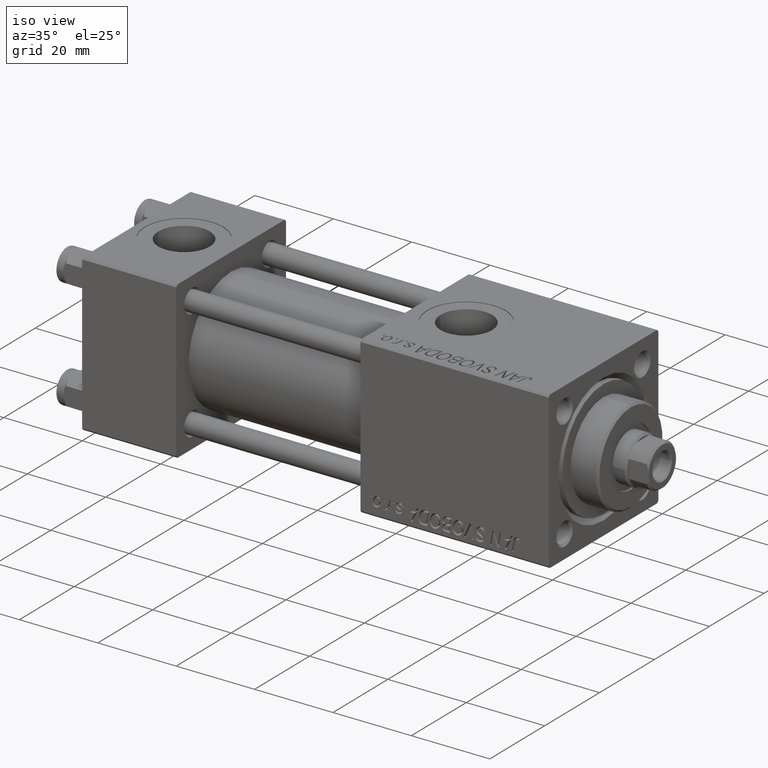
[diagram: clean part render]
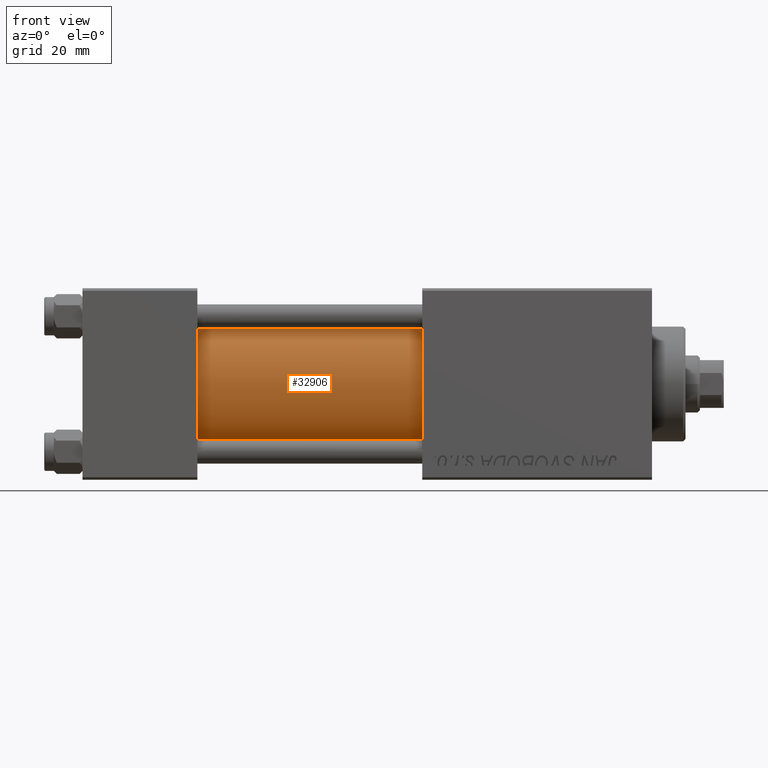
[diagram: tour spotlight — one face highlighted and labeled with its STEP entity id]
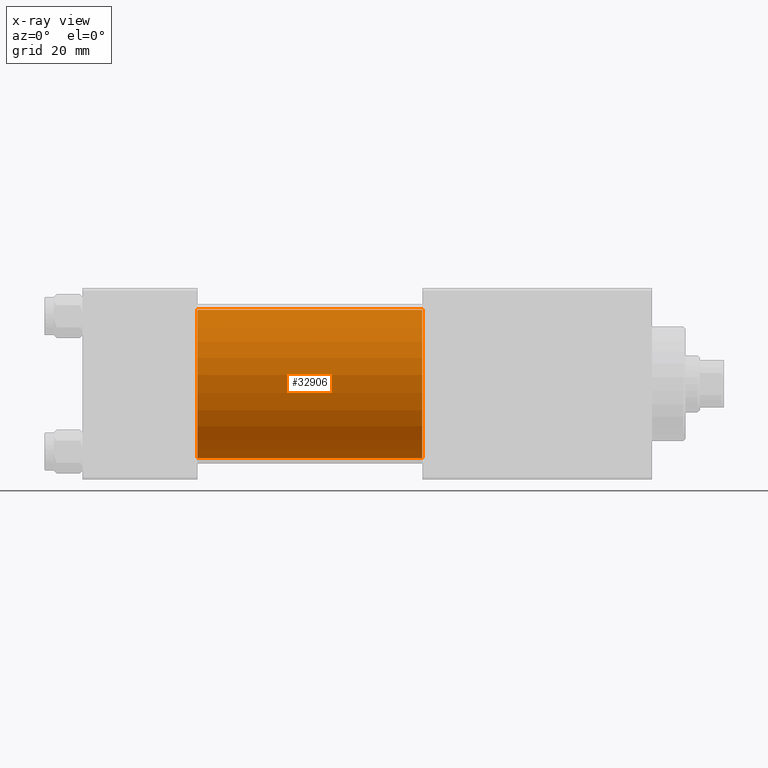
[diagram: x-ray of the same camera — body ghosted, this tour face saturated]
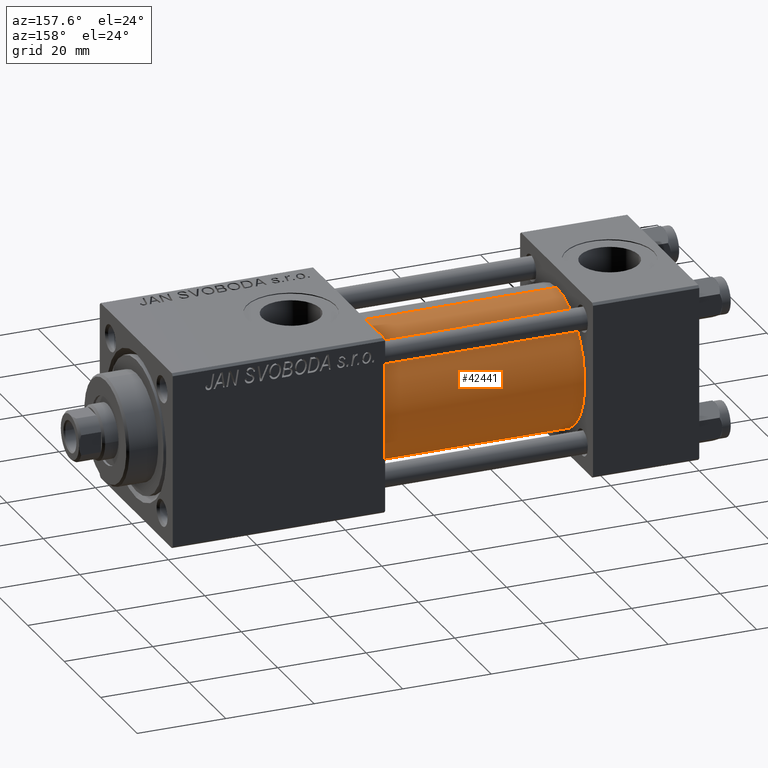
[diagram: tour spotlight — one face highlighted and labeled with its STEP entity id]
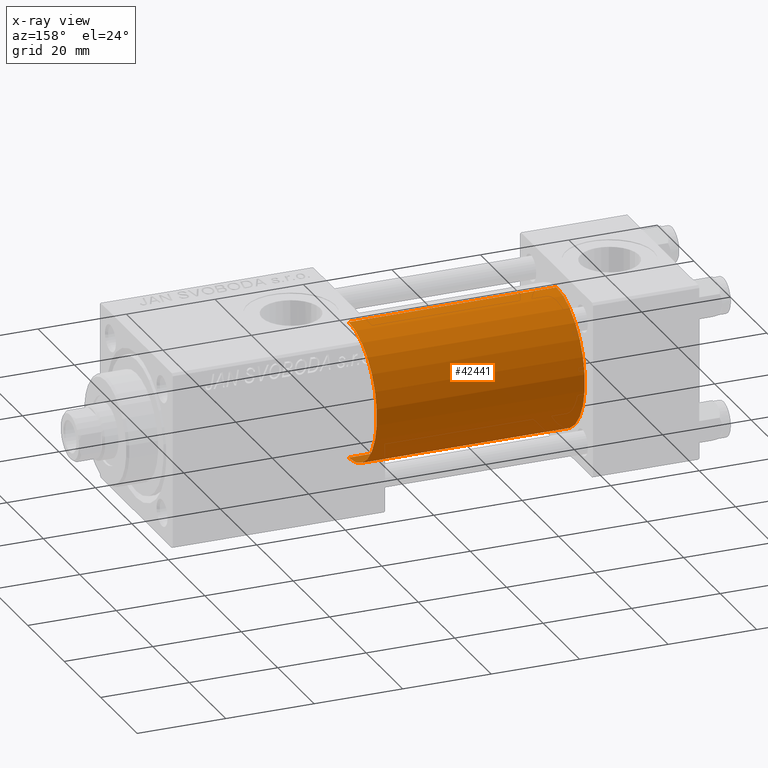
[diagram: x-ray of the same camera — body ghosted, this tour face saturated]
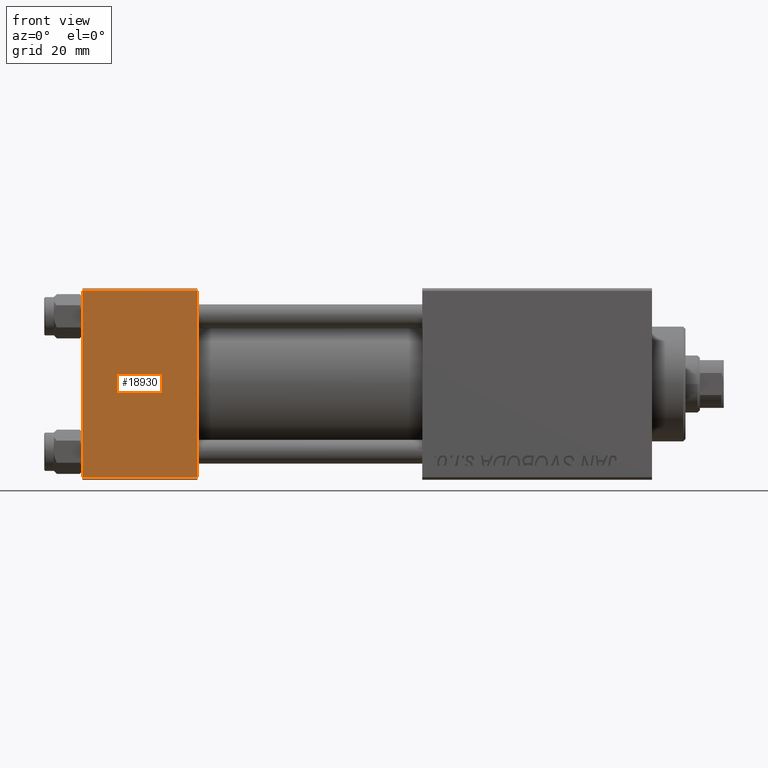
[diagram: tour spotlight — one face highlighted and labeled with its STEP entity id]
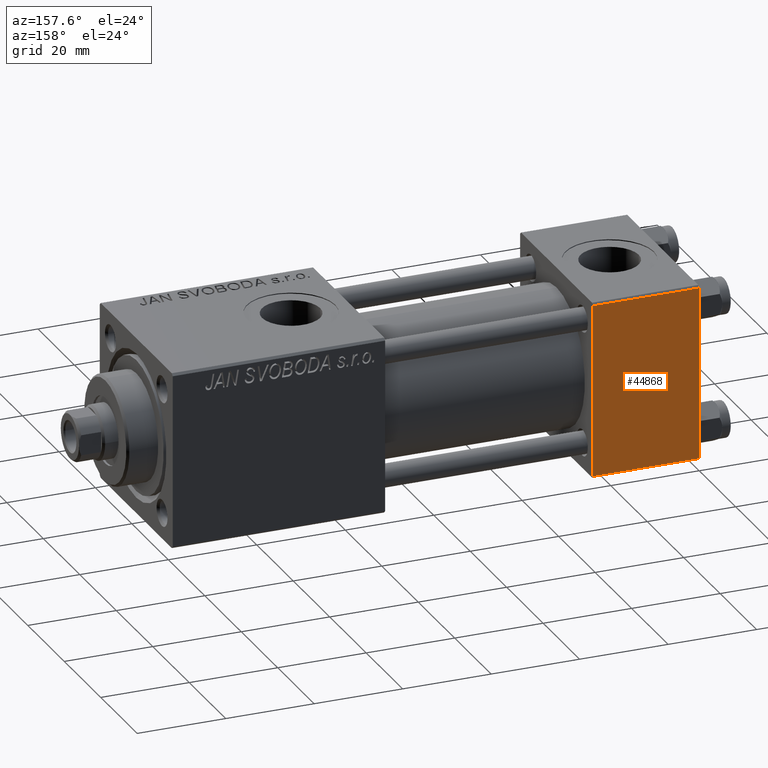
[diagram: tour spotlight — one face highlighted and labeled with its STEP entity id]
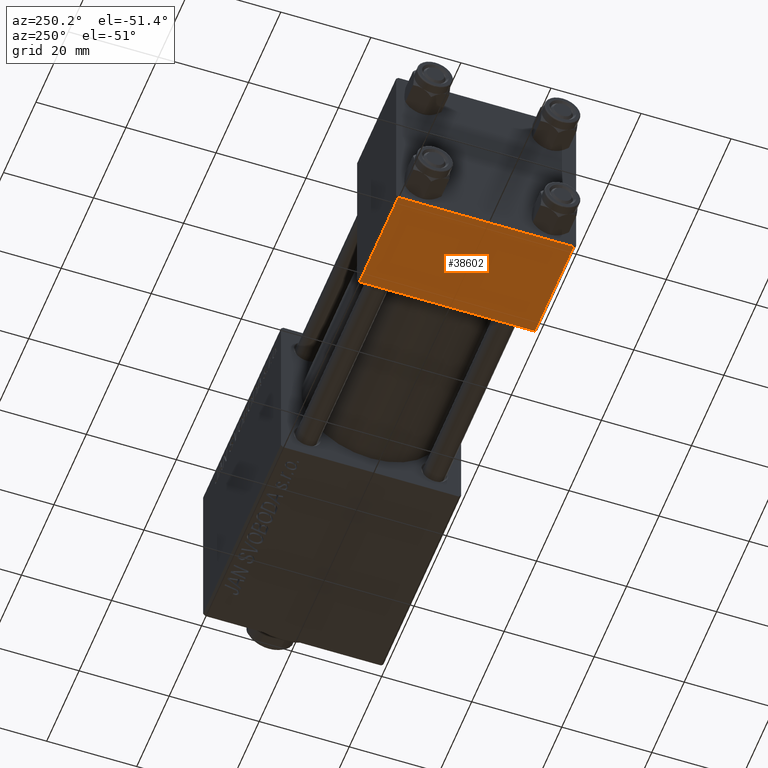
[diagram: tour spotlight — one face highlighted and labeled with its STEP entity id]
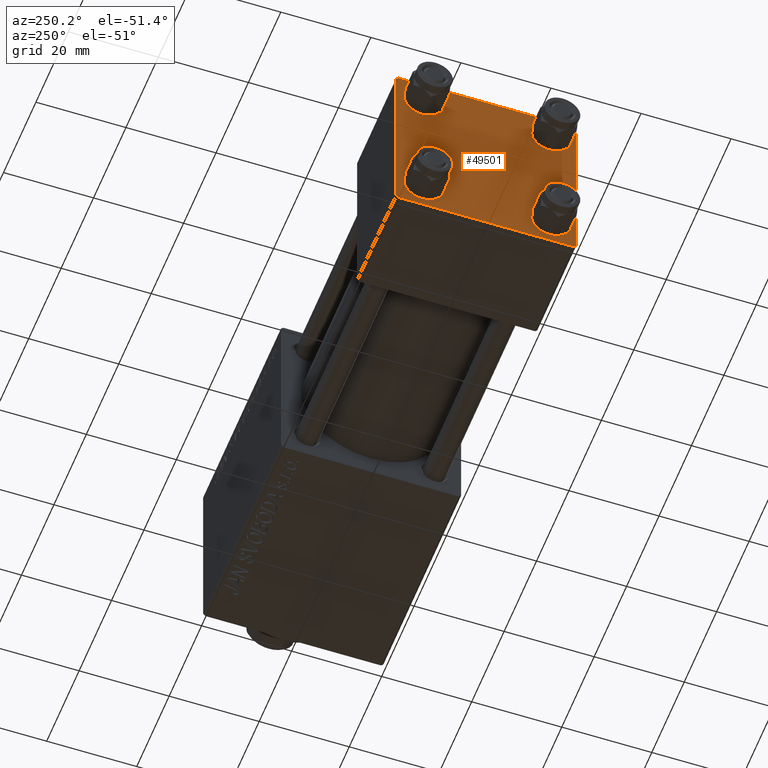
[diagram: tour spotlight — one face highlighted and labeled with its STEP entity id]
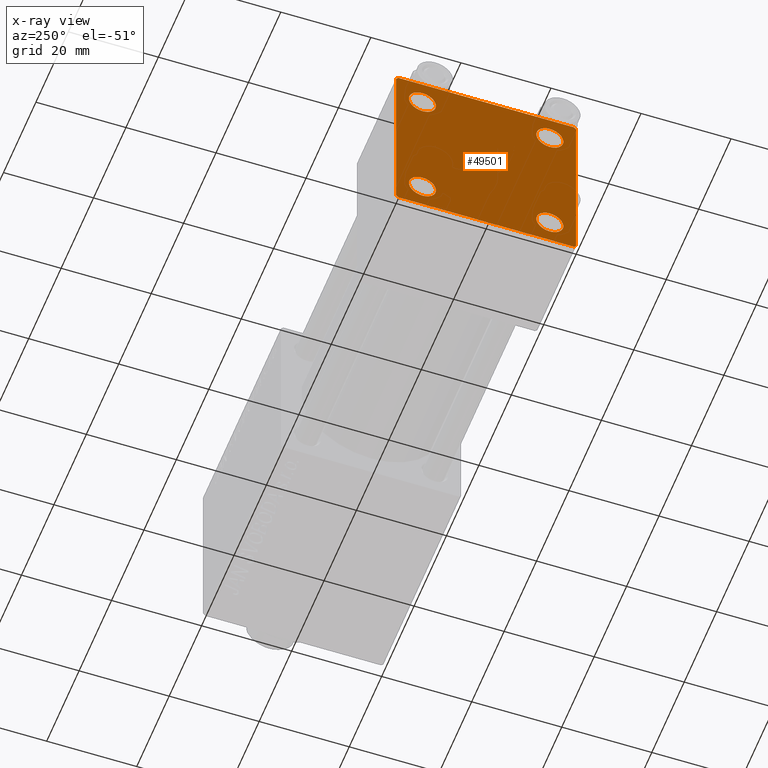
[diagram: x-ray of the same camera — body ghosted, this tour face saturated]
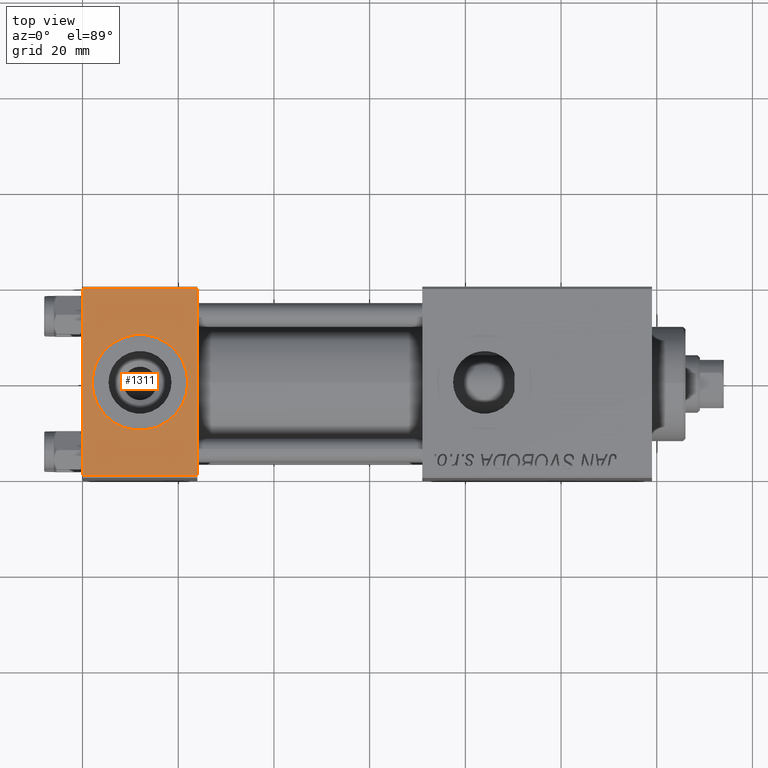
[diagram: tour spotlight — one face highlighted and labeled with its STEP entity id]
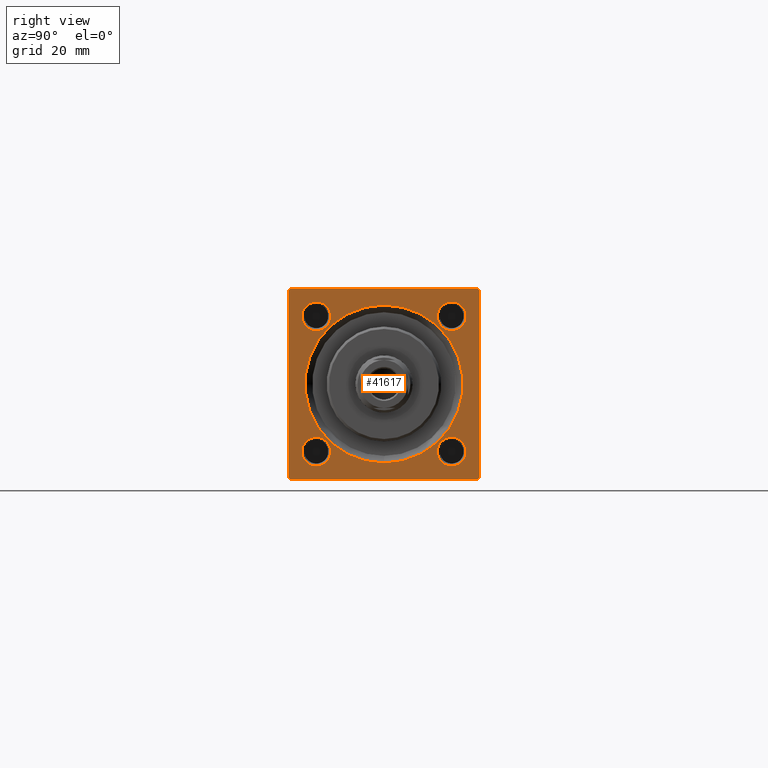
[diagram: tour spotlight — one face highlighted and labeled with its STEP entity id]
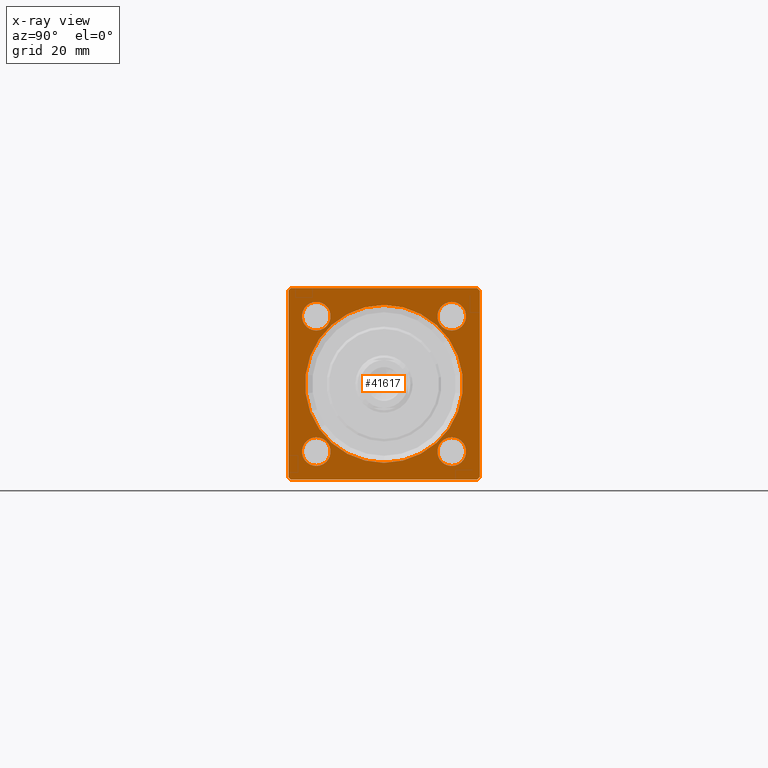
[diagram: x-ray of the same camera — body ghosted, this tour face saturated]
A machine part: a face-by-face anatomy tour. The part has 1147 B-rep faces; the first image is the clean iso view, then the 8 largest visible faces are spotlighted one at a time (largest first), each with its STEP entity span.

Face 1 — front view, entity #32906. An x-ray twin of the same camera follows (body ghosted, this face saturated) — the face is partly hidden behind the body. In plain terms, the highlighted cylindrical surface (partial cylindrical patch) has radius 15.5 mm, axis along (-1, -0, -0).
Definition (entity closure, byte-faithful):
#548 = VERTEX_POINT ( 'NONE', #37821 ) ;
#694 = EDGE_LOOP ( 'NONE', ( #35865, #41775, #36846, #36269 ) ) ;
#2488 = DIRECTION ( 'NONE',  ( 0.000000000000000000, 0.000000000000000000, -1.000000000000000000 ) ) ;
#2538 = CARTESIAN_POINT ( 'NONE',  ( 71.00000000000001421, -7.038826752868131828E-16, -15.50000000000000000 ) ) ;
#3381 = VECTOR ( 'NONE', #34699, 1000.000000000000000 ) ;
#4563 = DIRECTION ( 'NONE',  ( 1.000000000000000000, 0.000000000000000000, 0.000000000000000000 ) ) ;
#8455 = CARTESIAN_POINT ( 'NONE',  ( 24.00000000000000000, -7.038826752868131828E-16, -15.50000000000000000 ) ) ;
#8857 = VECTOR ( 'NONE', #44360, 1000.000000000000000 ) ;
#9284 = AXIS2_PLACEMENT_3D ( 'NONE', #18691, #41012, #2488 ) ;
#11641 = CARTESIAN_POINT ( 'NONE',  ( 71.00000000000001421, -2.602085213965210642E-15, 15.50000000000000000 ) ) ;
#14010 = DIRECTION ( 'NONE',  ( 0.000000000000000000, 0.000000000000000000, 1.000000000000000000 ) ) ;
#15178 = LINE ( 'NONE', #11641, #3381 ) ;
#15203 = CARTESIAN_POINT ( 'NONE',  ( 24.00000000000000000, -2.602085213965210642E-15, 0.000000000000000000 ) ) ;
#16123 = EDGE_CURVE ( 'NONE', #43633, #21705, #41061, .T. ) ;
#18691 = CARTESIAN_POINT ( 'NONE',  ( 71.00000000000001421, -2.602085213965210642E-15, 0.000000000000000000 ) ) ;
#19098 = VERTEX_POINT ( 'NONE', #20183 ) ;
#20183 = CARTESIAN_POINT ( 'NONE',  ( 24.00000000000000000, -2.602085213965210642E-15, 15.50000000000000000 ) ) ;
#21705 = VERTEX_POINT ( 'NONE', #8455 ) ;
#24182 = AXIS2_PLACEMENT_3D ( 'NONE', #42135, #33286, #14010 ) ;
#24486 = EDGE_CURVE ( 'NONE', #19098, #21705, #24867, .T. ) ;
#24867 = CIRCLE ( 'NONE', #32162, 15.50000000000000000 ) ;
#27380 = DIRECTION ( 'NONE',  ( 0.000000000000000000, 0.000000000000000000, 1.000000000000000000 ) ) ;
#29990 = FACE_OUTER_BOUND ( 'NONE', #694, .T. ) ;
#32162 = AXIS2_PLACEMENT_3D ( 'NONE', #15203, #4563, #27380 ) ;
#32906 = ADVANCED_FACE ( 'NONE', ( #29990 ), #41887, .T. ) ;
#32958 = CARTESIAN_POINT ( 'NONE',  ( 71.00000000000001421, -7.038826752868131828E-16, -15.50000000000000000 ) ) ;
#33286 = DIRECTION ( 'NONE',  ( -1.000000000000000000, -0.000000000000000000, -0.000000000000000000 ) ) ;
#34399 = CIRCLE ( 'NONE', #9284, 15.50000000000000000 ) ;
#34699 = DIRECTION ( 'NONE',  ( -1.000000000000000000, -0.000000000000000000, -0.000000000000000000 ) ) ;
#35865 = ORIENTED_EDGE ( 'NONE', *, *, #16123, .F. ) ;
#36269 = ORIENTED_EDGE ( 'NONE', *, *, #24486, .T. ) ;
#36846 = ORIENTED_EDGE ( 'NONE', *, *, #44607, .T. ) ;
#37821 = CARTESIAN_POINT ( 'NONE',  ( 71.00000000000001421, -2.602085213965210642E-15, 15.50000000000000000 ) ) ;
#41012 = DIRECTION ( 'NONE',  ( 1.000000000000000000, 0.000000000000000000, 0.000000000000000000 ) ) ;
#41061 = LINE ( 'NONE', #32958, #8857 ) ;
#41775 = ORIENTED_EDGE ( 'NONE', *, *, #49668, .F. ) ;
#41887 = CYLINDRICAL_SURFACE ( 'NONE', #24182, 15.50000000000000000 ) ;
#42135 = CARTESIAN_POINT ( 'NONE',  ( 71.00000000000001421, -2.602085213965210642E-15, 0.000000000000000000 ) ) ;
#43633 = VERTEX_POINT ( 'NONE', #2538 ) ;
#44360 = DIRECTION ( 'NONE',  ( -1.000000000000000000, -0.000000000000000000, -0.000000000000000000 ) ) ;
#44607 = EDGE_CURVE ( 'NONE', #548, #19098, #15178, .T. ) ;
#49668 = EDGE_CURVE ( 'NONE', #548, #43633, #34399, .T. ) ;

Face 2 — auxiliary view, entity #42441. An x-ray twin of the same camera follows (body ghosted, this face saturated) — the face is partly hidden behind the body. In plain terms, the highlighted cylindrical surface (partial cylindrical patch) has radius 15.5 mm, axis along (-1, -0, -0).
Definition (entity closure, byte-faithful):
#548 = VERTEX_POINT ( 'NONE', #37821 ) ;
#2076 = DIRECTION ( 'NONE',  ( 1.000000000000000000, 0.000000000000000000, 0.000000000000000000 ) ) ;
#2538 = CARTESIAN_POINT ( 'NONE',  ( 71.00000000000001421, -7.038826752868131828E-16, -15.50000000000000000 ) ) ;
#3381 = VECTOR ( 'NONE', #34699, 1000.000000000000000 ) ;
#5380 = ORIENTED_EDGE ( 'NONE', *, *, #9346, .T. ) ;
#6290 = DIRECTION ( 'NONE',  ( 1.000000000000000000, 0.000000000000000000, 0.000000000000000000 ) ) ;
#8455 = CARTESIAN_POINT ( 'NONE',  ( 24.00000000000000000, -7.038826752868131828E-16, -15.50000000000000000 ) ) ;
#8857 = VECTOR ( 'NONE', #44360, 1000.000000000000000 ) ;
#9346 = EDGE_CURVE ( 'NONE', #21705, #19098, #10697, .T. ) ;
#10585 = CARTESIAN_POINT ( 'NONE',  ( 71.00000000000001421, -2.602085213965210642E-15, 0.000000000000000000 ) ) ;
#10697 = CIRCLE ( 'NONE', #34993, 15.50000000000000000 ) ;
#11641 = CARTESIAN_POINT ( 'NONE',  ( 71.00000000000001421, -2.602085213965210642E-15, 15.50000000000000000 ) ) ;
#11696 = CARTESIAN_POINT ( 'NONE',  ( 71.00000000000001421, -2.602085213965210642E-15, 0.000000000000000000 ) ) ;
#14990 = FACE_OUTER_BOUND ( 'NONE', #29547, .T. ) ;
#15178 = LINE ( 'NONE', #11641, #3381 ) ;
#15754 = DIRECTION ( 'NONE',  ( 0.000000000000000000, 0.000000000000000000, 1.000000000000000000 ) ) ;
#16123 = EDGE_CURVE ( 'NONE', #43633, #21705, #41061, .T. ) ;
#18189 = DIRECTION ( 'NONE',  ( 0.000000000000000000, 0.000000000000000000, -1.000000000000000000 ) ) ;
#19098 = VERTEX_POINT ( 'NONE', #20183 ) ;
#20183 = CARTESIAN_POINT ( 'NONE',  ( 24.00000000000000000, -2.602085213965210642E-15, 15.50000000000000000 ) ) ;
#21705 = VERTEX_POINT ( 'NONE', #8455 ) ;
#22633 = ORIENTED_EDGE ( 'NONE', *, *, #16123, .T. ) ;
#23095 = DIRECTION ( 'NONE',  ( -1.000000000000000000, -0.000000000000000000, -0.000000000000000000 ) ) ;
#23259 = CIRCLE ( 'NONE', #33782, 15.50000000000000000 ) ;
#23344 = CYLINDRICAL_SURFACE ( 'NONE', #39871, 15.50000000000000000 ) ;
#24561 = EDGE_CURVE ( 'NONE', #43633, #548, #23259, .T. ) ;
#29547 = EDGE_LOOP ( 'NONE', ( #35736, #22633, #5380, #33478 ) ) ;
#32958 = CARTESIAN_POINT ( 'NONE',  ( 71.00000000000001421, -7.038826752868131828E-16, -15.50000000000000000 ) ) ;
#33478 = ORIENTED_EDGE ( 'NONE', *, *, #44607, .F. ) ;
#33782 = AXIS2_PLACEMENT_3D ( 'NONE', #10585, #6290, #18189 ) ;
#34699 = DIRECTION ( 'NONE',  ( -1.000000000000000000, -0.000000000000000000, -0.000000000000000000 ) ) ;
#34993 = AXIS2_PLACEMENT_3D ( 'NONE', #36794, #2076, #48707 ) ;
#35736 = ORIENTED_EDGE ( 'NONE', *, *, #24561, .F. ) ;
#36794 = CARTESIAN_POINT ( 'NONE',  ( 24.00000000000000000, -2.602085213965210642E-15, 0.000000000000000000 ) ) ;
#37821 = CARTESIAN_POINT ( 'NONE',  ( 71.00000000000001421, -2.602085213965210642E-15, 15.50000000000000000 ) ) ;
#39871 = AXIS2_PLACEMENT_3D ( 'NONE', #11696, #23095, #15754 ) ;
#41061 = LINE ( 'NONE', #32958, #8857 ) ;
#42441 = ADVANCED_FACE ( 'NONE', ( #14990 ), #23344, .T. ) ;
#43633 = VERTEX_POINT ( 'NONE', #2538 ) ;
#44360 = DIRECTION ( 'NONE',  ( -1.000000000000000000, -0.000000000000000000, -0.000000000000000000 ) ) ;
#44607 = EDGE_CURVE ( 'NONE', #548, #19098, #15178, .T. ) ;
#48707 = DIRECTION ( 'NONE',  ( 0.000000000000000000, 0.000000000000000000, 1.000000000000000000 ) ) ;

Face 3 — front view, entity #18930. In plain terms, the highlighted planar face has unit normal (0, 1, 0).
Definition (entity closure, byte-faithful):
#53 = LINE ( 'NONE', #49737, #7232 ) ;
#488 = EDGE_CURVE ( 'NONE', #3435, #12159, #53, .T. ) ;
#1483 = LINE ( 'NONE', #27868, #5207 ) ;
#3435 = VERTEX_POINT ( 'NONE', #10479 ) ;
#3943 = VECTOR ( 'NONE', #4988, 1000.000000000000000 ) ;
#4988 = DIRECTION ( 'NONE',  ( -1.000000000000000000, 0.000000000000000000, 0.000000000000000000 ) ) ;
#5207 = VECTOR ( 'NONE', #47877, 1000.000000000000000 ) ;
#5264 = CARTESIAN_POINT ( 'NONE',  ( 0.000000000000000000, -20.00000000000000355, 19.49999999999998224 ) ) ;
#5869 = AXIS2_PLACEMENT_3D ( 'NONE', #35216, #15953, #20251 ) ;
#7232 = VECTOR ( 'NONE', #38590, 1000.000000000000000 ) ;
#7907 = CARTESIAN_POINT ( 'NONE',  ( 24.00000000000000000, -20.00000000000000355, 19.49999999999998224 ) ) ;
#10479 = CARTESIAN_POINT ( 'NONE',  ( 0.000000000000000000, -20.00000000000000000, -19.49999999999999645 ) ) ;
#11600 = LINE ( 'NONE', #35172, #3943 ) ;
#12159 = VERTEX_POINT ( 'NONE', #19499 ) ;
#13394 = EDGE_CURVE ( 'NONE', #23441, #12159, #1483, .T. ) ;
#15953 = DIRECTION ( 'NONE',  ( -0.000000000000000000, 1.000000000000000000, 8.673617379884036705E-17 ) ) ;
#16915 = ORIENTED_EDGE ( 'NONE', *, *, #13394, .F. ) ;
#18402 = VECTOR ( 'NONE', #45813, 1000.000000000000000 ) ;
#18930 = ADVANCED_FACE ( 'NONE', ( #44045 ), #40249, .F. ) ;
#19499 = CARTESIAN_POINT ( 'NONE',  ( 24.00000000000000000, -20.00000000000000000, -19.49999999999999645 ) ) ;
#20251 = DIRECTION ( 'NONE',  ( 0.000000000000000000, -8.673617379884036705E-17, 1.000000000000000000 ) ) ;
#20415 = ORIENTED_EDGE ( 'NONE', *, *, #488, .T. ) ;
#23441 = VERTEX_POINT ( 'NONE', #7907 ) ;
#24600 = EDGE_CURVE ( 'NONE', #41639, #3435, #29361, .T. ) ;
#27868 = CARTESIAN_POINT ( 'NONE',  ( 24.00000000000000000, -20.00000000000000355, 19.99999999999998934 ) ) ;
#29361 = LINE ( 'NONE', #37218, #18402 ) ;
#30193 = ORIENTED_EDGE ( 'NONE', *, *, #24600, .T. ) ;
#31483 = EDGE_CURVE ( 'NONE', #23441, #41639, #11600, .T. ) ;
#32728 = EDGE_LOOP ( 'NONE', ( #30193, #20415, #16915, #35875 ) ) ;
#35172 = CARTESIAN_POINT ( 'NONE',  ( 24.00000000000000000, -20.00000000000000355, 19.49999999999998224 ) ) ;
#35216 = CARTESIAN_POINT ( 'NONE',  ( 24.00000000000000000, -20.00000000000000355, 19.99999999999998934 ) ) ;
#35875 = ORIENTED_EDGE ( 'NONE', *, *, #31483, .T. ) ;
#37218 = CARTESIAN_POINT ( 'NONE',  ( 0.000000000000000000, -20.00000000000000355, 19.99999999999998934 ) ) ;
#38590 = DIRECTION ( 'NONE',  ( 1.000000000000000000, 0.000000000000000000, 0.000000000000000000 ) ) ;
#40249 = PLANE ( 'NONE',  #5869 ) ;
#41639 = VERTEX_POINT ( 'NONE', #5264 ) ;
#44045 = FACE_OUTER_BOUND ( 'NONE', #32728, .T. ) ;
#45813 = DIRECTION ( 'NONE',  ( 0.000000000000000000, 8.673617379884036705E-17, -1.000000000000000000 ) ) ;
#47877 = DIRECTION ( 'NONE',  ( 0.000000000000000000, 8.673617379884036705E-17, -1.000000000000000000 ) ) ;
#49737 = CARTESIAN_POINT ( 'NONE',  ( 24.00000000000000000, -20.00000000000000000, -19.49999999999999645 ) ) ;

Face 4 — auxiliary view, entity #44868. In plain terms, the highlighted planar face has unit normal (0, 1, 0).
Definition (entity closure, byte-faithful):
#2053 = ORIENTED_EDGE ( 'NONE', *, *, #48753, .F. ) ;
#3534 = EDGE_CURVE ( 'NONE', #37918, #40338, #41653, .T. ) ;
#3794 = EDGE_CURVE ( 'NONE', #6231, #37918, #11122, .T. ) ;
#4029 = CARTESIAN_POINT ( 'NONE',  ( 24.00000000000000000, 20.00000000000000000, 19.49999999999999289 ) ) ;
#4217 = ORIENTED_EDGE ( 'NONE', *, *, #3794, .T. ) ;
#6231 = VERTEX_POINT ( 'NONE', #40060 ) ;
#6494 = DIRECTION ( 'NONE',  ( 0.000000000000000000, 0.000000000000000000, -1.000000000000000000 ) ) ;
#8328 = DIRECTION ( 'NONE',  ( 1.000000000000000000, 0.000000000000000000, 0.000000000000000000 ) ) ;
#8629 = EDGE_LOOP ( 'NONE', ( #22192, #29005, #2053, #4217 ) ) ;
#8713 = CARTESIAN_POINT ( 'NONE',  ( 0.000000000000000000, 20.00000000000000000, -19.50000000000002132 ) ) ;
#11122 = LINE ( 'NONE', #4029, #25166 ) ;
#15877 = DIRECTION ( 'NONE',  ( -1.000000000000000000, 0.000000000000000000, 0.000000000000000000 ) ) ;
#18165 = FACE_OUTER_BOUND ( 'NONE', #8629, .T. ) ;
#18831 = VECTOR ( 'NONE', #15877, 1000.000000000000000 ) ;
#19702 = CARTESIAN_POINT ( 'NONE',  ( 24.00000000000000000, 20.00000000000000000, -19.50000000000002132 ) ) ;
#19826 = VECTOR ( 'NONE', #6494, 1000.000000000000000 ) ;
#21466 = LINE ( 'NONE', #22197, #19826 ) ;
#22192 = ORIENTED_EDGE ( 'NONE', *, *, #3534, .T. ) ;
#22197 = CARTESIAN_POINT ( 'NONE',  ( 0.000000000000000000, 20.00000000000000000, 20.00000000000000000 ) ) ;
#23211 = LINE ( 'NONE', #27280, #18831 ) ;
#23593 = DIRECTION ( 'NONE',  ( 0.000000000000000000, 0.000000000000000000, -1.000000000000000000 ) ) ;
#25166 = VECTOR ( 'NONE', #8328, 1000.000000000000000 ) ;
#26904 = AXIS2_PLACEMENT_3D ( 'NONE', #33632, #49593, #49093 ) ;
#27280 = CARTESIAN_POINT ( 'NONE',  ( 24.00000000000000000, 20.00000000000000000, -19.50000000000002132 ) ) ;
#29005 = ORIENTED_EDGE ( 'NONE', *, *, #41847, .T. ) ;
#30339 = PLANE ( 'NONE',  #26904 ) ;
#33325 = CARTESIAN_POINT ( 'NONE',  ( 24.00000000000000000, 20.00000000000000000, 19.49999999999999289 ) ) ;
#33632 = CARTESIAN_POINT ( 'NONE',  ( 24.00000000000000000, 20.00000000000000000, 20.00000000000000000 ) ) ;
#34307 = CARTESIAN_POINT ( 'NONE',  ( 24.00000000000000000, 20.00000000000000000, 20.00000000000000000 ) ) ;
#35691 = VECTOR ( 'NONE', #23593, 1000.000000000000000 ) ;
#37918 = VERTEX_POINT ( 'NONE', #33325 ) ;
#40060 = CARTESIAN_POINT ( 'NONE',  ( 0.000000000000000000, 20.00000000000000000, 19.49999999999999289 ) ) ;
#40338 = VERTEX_POINT ( 'NONE', #19702 ) ;
#41653 = LINE ( 'NONE', #34307, #35691 ) ;
#41847 = EDGE_CURVE ( 'NONE', #40338, #45971, #23211, .T. ) ;
#44868 = ADVANCED_FACE ( 'NONE', ( #18165 ), #30339, .T. ) ;
#45971 = VERTEX_POINT ( 'NONE', #8713 ) ;
#48753 = EDGE_CURVE ( 'NONE', #6231, #45971, #21466, .T. ) ;
#49093 = DIRECTION ( 'NONE',  ( 0.000000000000000000, -0.000000000000000000, 1.000000000000000000 ) ) ;
#49593 = DIRECTION ( 'NONE',  ( -0.000000000000000000, 1.000000000000000000, 0.000000000000000000 ) ) ;

Face 5 — auxiliary view, entity #38602. In plain terms, the highlighted planar face has unit normal (0, -0, -1).
Definition (entity closure, byte-faithful):
#2098 = CARTESIAN_POINT ( 'NONE',  ( 24.00000000000000000, 19.50000000000000711, -20.00000000000000711 ) ) ;
#2207 = DIRECTION ( 'NONE',  ( 0.000000000000000000, -1.000000000000000000, 1.734723475976807094E-16 ) ) ;
#5022 = DIRECTION ( 'NONE',  ( 0.000000000000000000, -1.734723475976806848E-16, -1.000000000000000000 ) ) ;
#6066 = CARTESIAN_POINT ( 'NONE',  ( 24.00000000000000000, -19.50000000000000711, -20.00000000000000000 ) ) ;
#7690 = ORIENTED_EDGE ( 'NONE', *, *, #13175, .T. ) ;
#9315 = CARTESIAN_POINT ( 'NONE',  ( 0.000000000000000000, 20.00000000000000000, -20.00000000000000711 ) ) ;
#9560 = CARTESIAN_POINT ( 'NONE',  ( 24.00000000000000000, 20.00000000000000000, -20.00000000000000711 ) ) ;
#13175 = EDGE_CURVE ( 'NONE', #27724, #41266, #14950, .T. ) ;
#14950 = LINE ( 'NONE', #21557, #27068 ) ;
#15918 = EDGE_CURVE ( 'NONE', #47332, #27724, #29711, .T. ) ;
#17863 = EDGE_CURVE ( 'NONE', #47332, #24180, #25007, .T. ) ;
#18569 = DIRECTION ( 'NONE',  ( -1.000000000000000000, 0.000000000000000000, 0.000000000000000000 ) ) ;
#19302 = CARTESIAN_POINT ( 'NONE',  ( 24.00000000000000000, 19.50000000000000711, -20.00000000000000711 ) ) ;
#21557 = CARTESIAN_POINT ( 'NONE',  ( 24.00000000000000000, 20.00000000000000000, -20.00000000000000711 ) ) ;
#22372 = CARTESIAN_POINT ( 'NONE',  ( 0.000000000000000000, -19.50000000000000711, -20.00000000000000000 ) ) ;
#24180 = VERTEX_POINT ( 'NONE', #34016 ) ;
#24225 = VECTOR ( 'NONE', #45164, 1000.000000000000000 ) ;
#25007 = LINE ( 'NONE', #9315, #31928 ) ;
#25461 = EDGE_CURVE ( 'NONE', #41266, #24180, #45439, .T. ) ;
#27068 = VECTOR ( 'NONE', #33959, 1000.000000000000000 ) ;
#27378 = VECTOR ( 'NONE', #18569, 1000.000000000000000 ) ;
#27724 = VERTEX_POINT ( 'NONE', #19302 ) ;
#28830 = DIRECTION ( 'NONE',  ( 0.000000000000000000, 1.000000000000000000, -1.734723475976806848E-16 ) ) ;
#28927 = CARTESIAN_POINT ( 'NONE',  ( 0.000000000000000000, 19.50000000000000711, -20.00000000000000711 ) ) ;
#29711 = LINE ( 'NONE', #2098, #24225 ) ;
#31928 = VECTOR ( 'NONE', #2207, 1000.000000000000000 ) ;
#32107 = EDGE_LOOP ( 'NONE', ( #37860, #40217, #7690, #50079 ) ) ;
#33959 = DIRECTION ( 'NONE',  ( 0.000000000000000000, -1.000000000000000000, 1.734723475976807094E-16 ) ) ;
#34016 = CARTESIAN_POINT ( 'NONE',  ( 0.000000000000000000, -19.50000000000000711, -20.00000000000000000 ) ) ;
#36431 = FACE_OUTER_BOUND ( 'NONE', #32107, .T. ) ;
#37334 = AXIS2_PLACEMENT_3D ( 'NONE', #9560, #5022, #28830 ) ;
#37860 = ORIENTED_EDGE ( 'NONE', *, *, #17863, .F. ) ;
#38602 = ADVANCED_FACE ( 'NONE', ( #36431 ), #48589, .T. ) ;
#40217 = ORIENTED_EDGE ( 'NONE', *, *, #15918, .T. ) ;
#41266 = VERTEX_POINT ( 'NONE', #6066 ) ;
#45164 = DIRECTION ( 'NONE',  ( 1.000000000000000000, 0.000000000000000000, 0.000000000000000000 ) ) ;
#45439 = LINE ( 'NONE', #22372, #27378 ) ;
#47332 = VERTEX_POINT ( 'NONE', #28927 ) ;
#48589 = PLANE ( 'NONE',  #37334 ) ;
#50079 = ORIENTED_EDGE ( 'NONE', *, *, #25461, .T. ) ;

Face 6 — auxiliary view, entity #49501. An x-ray twin of the same camera follows (body ghosted, this face saturated) — the face is partly hidden behind the body. In plain terms, the highlighted planar face has unit normal (-1, 0, 0).
Definition (entity closure, byte-faithful):
#60 = CARTESIAN_POINT ( 'NONE',  ( 0.000000000000000000, 0.000000000000000000, 0.000000000000000000 ) ) ;
#270 = DIRECTION ( 'NONE',  ( 1.000000000000000000, 0.000000000000000000, 0.000000000000000000 ) ) ;
#347 = ORIENTED_EDGE ( 'NONE', *, *, #12325, .T. ) ;
#395 = CIRCLE ( 'NONE', #5244, 2.999999999999983569 ) ;
#519 = VERTEX_POINT ( 'NONE', #10955 ) ;
#913 = VECTOR ( 'NONE', #8096, 999.9999999999998863 ) ;
#1587 = ORIENTED_EDGE ( 'NONE', *, *, #29124, .T. ) ;
#1656 = VERTEX_POINT ( 'NONE', #8354 ) ;
#2085 = CARTESIAN_POINT ( 'NONE',  ( 0.000000000000000000, -14.14999999999999503, -17.15000000000000924 ) ) ;
#2207 = DIRECTION ( 'NONE',  ( 0.000000000000000000, -1.000000000000000000, 1.734723475976807094E-16 ) ) ;
#2322 = VERTEX_POINT ( 'NONE', #38286 ) ;
#3018 = LINE ( 'NONE', #14160, #34921 ) ;
#3054 = CARTESIAN_POINT ( 'NONE',  ( 0.000000000000000000, 19.50000000000000000, 20.00000000000000000 ) ) ;
#3390 = ORIENTED_EDGE ( 'NONE', *, *, #17863, .T. ) ;
#3407 = CARTESIAN_POINT ( 'NONE',  ( 0.000000000000000000, 14.14999999999999858, 14.15000000000000036 ) ) ;
#3435 = VERTEX_POINT ( 'NONE', #10479 ) ;
#5244 = AXIS2_PLACEMENT_3D ( 'NONE', #11761, #26965, #45462 ) ;
#5264 = CARTESIAN_POINT ( 'NONE',  ( 0.000000000000000000, -20.00000000000000355, 19.49999999999998224 ) ) ;
#6154 = ORIENTED_EDGE ( 'NONE', *, *, #18643, .T. ) ;
#6231 = VERTEX_POINT ( 'NONE', #40060 ) ;
#6494 = DIRECTION ( 'NONE',  ( 0.000000000000000000, 0.000000000000000000, -1.000000000000000000 ) ) ;
#6951 = CARTESIAN_POINT ( 'NONE',  ( 0.000000000000000000, -14.14999999999999503, 17.14999999999998792 ) ) ;
#7204 = DIRECTION ( 'NONE',  ( 0.000000000000000000, 0.000000000000000000, 1.000000000000000000 ) ) ;
#7345 = EDGE_CURVE ( 'NONE', #35277, #6231, #43069, .T. ) ;
#8096 = DIRECTION ( 'NONE',  ( 0.000000000000000000, 0.7071067811865425767, -0.7071067811865525687 ) ) ;
#8354 = CARTESIAN_POINT ( 'NONE',  ( 0.000000000000000000, 14.14999999999999858, 11.15000000000001990 ) ) ;
#8371 = DIRECTION ( 'NONE',  ( 0.000000000000000000, 0.000000000000000000, 1.000000000000000000 ) ) ;
#8713 = CARTESIAN_POINT ( 'NONE',  ( 0.000000000000000000, 20.00000000000000000, -19.50000000000002132 ) ) ;
#8839 = DIRECTION ( 'NONE',  ( 0.000000000000000000, 0.000000000000000000, 1.000000000000000000 ) ) ;
#9315 = CARTESIAN_POINT ( 'NONE',  ( 0.000000000000000000, 20.00000000000000000, -20.00000000000000711 ) ) ;
#10479 = CARTESIAN_POINT ( 'NONE',  ( 0.000000000000000000, -20.00000000000000000, -19.49999999999999645 ) ) ;
#10586 = CARTESIAN_POINT ( 'NONE',  ( 0.000000000000000000, 14.14999999999999858, 17.14999999999998437 ) ) ;
#10692 = AXIS2_PLACEMENT_3D ( 'NONE', #33831, #11023, #37891 ) ;
#10955 = CARTESIAN_POINT ( 'NONE',  ( 0.000000000000000000, 14.14999999999999858, -11.15000000000001812 ) ) ;
#10996 = ORIENTED_EDGE ( 'NONE', *, *, #18204, .T. ) ;
#11023 = DIRECTION ( 'NONE',  ( 1.000000000000000000, 0.000000000000000000, 0.000000000000000000 ) ) ;
#11761 = CARTESIAN_POINT ( 'NONE',  ( 0.000000000000000000, 14.14999999999999858, -14.15000000000000036 ) ) ;
#12325 = EDGE_CURVE ( 'NONE', #23085, #19748, #25375, .T. ) ;
#12355 = EDGE_LOOP ( 'NONE', ( #36122, #10996, #3390, #26302, #43156, #6154, #46740, #34422 ) ) ;
#12666 = ORIENTED_EDGE ( 'NONE', *, *, #40527, .T. ) ;
#12705 = DIRECTION ( 'NONE',  ( 0.000000000000000000, 0.000000000000000000, 1.000000000000000000 ) ) ;
#13027 = EDGE_CURVE ( 'NONE', #49710, #1656, #27027, .T. ) ;
#13230 = CARTESIAN_POINT ( 'NONE',  ( 0.000000000000000000, -19.75000000000020961, -19.74999999999979394 ) ) ;
#13891 = ORIENTED_EDGE ( 'NONE', *, *, #15831, .T. ) ;
#13964 = DIRECTION ( 'NONE',  ( 0.000000000000000000, -0.7071067811865401342, 0.7071067811865549002 ) ) ;
#14160 = CARTESIAN_POINT ( 'NONE',  ( 0.000000000000000000, 20.00000000000000000, 20.00000000000000000 ) ) ;
#14336 = DIRECTION ( 'NONE',  ( 1.000000000000000000, 0.000000000000000000, 0.000000000000000000 ) ) ;
#14422 = AXIS2_PLACEMENT_3D ( 'NONE', #29821, #14336, #38172 ) ;
#14495 = FACE_BOUND ( 'NONE', #17634, .T. ) ;
#14603 = EDGE_CURVE ( 'NONE', #519, #2322, #395, .T. ) ;
#14960 = AXIS2_PLACEMENT_3D ( 'NONE', #60, #46448, #15525 ) ;
#15525 = DIRECTION ( 'NONE',  ( -0.000000000000000000, 0.000000000000000000, 1.000000000000000000 ) ) ;
#15831 = EDGE_CURVE ( 'NONE', #1656, #49710, #48505, .T. ) ;
#16044 = CIRCLE ( 'NONE', #14422, 3.000000000000004441 ) ;
#16065 = VERTEX_POINT ( 'NONE', #41312 ) ;
#16750 = CARTESIAN_POINT ( 'NONE',  ( 0.000000000000000000, -14.14999999999999503, 11.15000000000002345 ) ) ;
#16996 = DIRECTION ( 'NONE',  ( 1.000000000000000000, 0.000000000000000000, 0.000000000000000000 ) ) ;
#17634 = EDGE_LOOP ( 'NONE', ( #25226, #13891 ) ) ;
#17863 = EDGE_CURVE ( 'NONE', #47332, #24180, #25007, .T. ) ;
#17969 = DIRECTION ( 'NONE',  ( 0.000000000000000000, -1.000000000000000000, -2.602085213965210149E-16 ) ) ;
#18204 = EDGE_CURVE ( 'NONE', #45971, #47332, #43972, .T. ) ;
#18402 = VECTOR ( 'NONE', #45813, 1000.000000000000000 ) ;
#18643 = EDGE_CURVE ( 'NONE', #41639, #16065, #42049, .T. ) ;
#18708 = EDGE_LOOP ( 'NONE', ( #45129, #12666 ) ) ;
#19676 = CARTESIAN_POINT ( 'NONE',  ( 0.000000000000000000, -14.14999999999999503, -11.15000000000000036 ) ) ;
#19748 = VERTEX_POINT ( 'NONE', #16750 ) ;
#19826 = VECTOR ( 'NONE', #6494, 1000.000000000000000 ) ;
#20828 = DIRECTION ( 'NONE',  ( 1.000000000000000000, 0.000000000000000000, 0.000000000000000000 ) ) ;
#21201 = CIRCLE ( 'NONE', #10692, 2.999999999999983569 ) ;
#21466 = LINE ( 'NONE', #22197, #19826 ) ;
#21993 = VERTEX_POINT ( 'NONE', #2085 ) ;
#22197 = CARTESIAN_POINT ( 'NONE',  ( 0.000000000000000000, 20.00000000000000000, 20.00000000000000000 ) ) ;
#23085 = VERTEX_POINT ( 'NONE', #6951 ) ;
#23417 = DIRECTION ( 'NONE',  ( 1.000000000000000000, 0.000000000000000000, 0.000000000000000000 ) ) ;
#24180 = VERTEX_POINT ( 'NONE', #34016 ) ;
#24432 = EDGE_LOOP ( 'NONE', ( #28760, #26228 ) ) ;
#24600 = EDGE_CURVE ( 'NONE', #41639, #3435, #29361, .T. ) ;
#25007 = LINE ( 'NONE', #9315, #31928 ) ;
#25226 = ORIENTED_EDGE ( 'NONE', *, *, #13027, .T. ) ;
#25375 = CIRCLE ( 'NONE', #48050, 2.999999999999983569 ) ;
#25821 = AXIS2_PLACEMENT_3D ( 'NONE', #45187, #270, #8371 ) ;
#26228 = ORIENTED_EDGE ( 'NONE', *, *, #48150, .T. ) ;
#26302 = ORIENTED_EDGE ( 'NONE', *, *, #30092, .T. ) ;
#26389 = EDGE_CURVE ( 'NONE', #27079, #21993, #16044, .T. ) ;
#26922 = FACE_OUTER_BOUND ( 'NONE', #12355, .T. ) ;
#26965 = DIRECTION ( 'NONE',  ( 1.000000000000000000, 0.000000000000000000, 0.000000000000000000 ) ) ;
#27027 = CIRCLE ( 'NONE', #33488, 2.999999999999983569 ) ;
#27079 = VERTEX_POINT ( 'NONE', #19676 ) ;
#27188 = FACE_BOUND ( 'NONE', #24432, .T. ) ;
#28760 = ORIENTED_EDGE ( 'NONE', *, *, #26389, .T. ) ;
#28762 = CARTESIAN_POINT ( 'NONE',  ( -0.000000000000000000, 19.74999999999986855, -19.75000000000014211 ) ) ;
#28927 = CARTESIAN_POINT ( 'NONE',  ( 0.000000000000000000, 19.50000000000000711, -20.00000000000000711 ) ) ;
#28930 = CARTESIAN_POINT ( 'NONE',  ( 0.000000000000000000, -14.14999999999999503, -14.15000000000000391 ) ) ;
#29124 = EDGE_CURVE ( 'NONE', #19748, #23085, #50000, .T. ) ;
#29264 = DIRECTION ( 'NONE',  ( -0.000000000000000000, -0.7071067811865524577, -0.7071067811865426878 ) ) ;
#29361 = LINE ( 'NONE', #37218, #18402 ) ;
#29821 = CARTESIAN_POINT ( 'NONE',  ( 0.000000000000000000, -14.14999999999999503, -14.15000000000000391 ) ) ;
#30092 = EDGE_CURVE ( 'NONE', #24180, #3435, #40347, .T. ) ;
#31798 = VECTOR ( 'NONE', #38516, 1000.000000000000114 ) ;
#31905 = DIRECTION ( 'NONE',  ( 1.000000000000000000, 0.000000000000000000, 0.000000000000000000 ) ) ;
#31928 = VECTOR ( 'NONE', #2207, 1000.000000000000000 ) ;
#31989 = CIRCLE ( 'NONE', #38482, 3.000000000000004441 ) ;
#33488 = AXIS2_PLACEMENT_3D ( 'NONE', #35781, #16996, #12705 ) ;
#33831 = CARTESIAN_POINT ( 'NONE',  ( 0.000000000000000000, 14.14999999999999858, -14.15000000000000036 ) ) ;
#34016 = CARTESIAN_POINT ( 'NONE',  ( 0.000000000000000000, -19.50000000000000711, -20.00000000000000000 ) ) ;
#34422 = ORIENTED_EDGE ( 'NONE', *, *, #7345, .T. ) ;
#34921 = VECTOR ( 'NONE', #17969, 1000.000000000000000 ) ;
#35277 = VERTEX_POINT ( 'NONE', #3054 ) ;
#35781 = CARTESIAN_POINT ( 'NONE',  ( 0.000000000000000000, 14.14999999999999858, 14.15000000000000036 ) ) ;
#36122 = ORIENTED_EDGE ( 'NONE', *, *, #48753, .T. ) ;
#37218 = CARTESIAN_POINT ( 'NONE',  ( 0.000000000000000000, -20.00000000000000355, 19.99999999999998934 ) ) ;
#37831 = FACE_BOUND ( 'NONE', #38736, .T. ) ;
#37880 = VECTOR ( 'NONE', #13964, 1000.000000000000000 ) ;
#37891 = DIRECTION ( 'NONE',  ( 0.000000000000000000, 0.000000000000000000, 1.000000000000000000 ) ) ;
#38172 = DIRECTION ( 'NONE',  ( 0.000000000000000000, 0.000000000000000000, 1.000000000000000000 ) ) ;
#38286 = CARTESIAN_POINT ( 'NONE',  ( 0.000000000000000000, 14.14999999999999858, -17.14999999999998437 ) ) ;
#38360 = EDGE_CURVE ( 'NONE', #35277, #16065, #3018, .T. ) ;
#38482 = AXIS2_PLACEMENT_3D ( 'NONE', #28930, #20828, #44380 ) ;
#38516 = DIRECTION ( 'NONE',  ( -0.000000000000000000, 0.7071067811865500152, 0.7071067811865451302 ) ) ;
#38736 = EDGE_LOOP ( 'NONE', ( #347, #1587 ) ) ;
#38853 = PLANE ( 'NONE',  #14960 ) ;
#39269 = CARTESIAN_POINT ( 'NONE',  ( 0.000000000000000000, -14.14999999999999503, 14.15000000000000391 ) ) ;
#40060 = CARTESIAN_POINT ( 'NONE',  ( 0.000000000000000000, 20.00000000000000000, 19.49999999999999289 ) ) ;
#40347 = LINE ( 'NONE', #13230, #37880 ) ;
#40527 = EDGE_CURVE ( 'NONE', #2322, #519, #21201, .T. ) ;
#41233 = AXIS2_PLACEMENT_3D ( 'NONE', #3407, #23417, #7204 ) ;
#41312 = CARTESIAN_POINT ( 'NONE',  ( 0.000000000000000000, -19.49999999999999289, 19.99999999999998934 ) ) ;
#41625 = FACE_BOUND ( 'NONE', #18708, .T. ) ;
#41639 = VERTEX_POINT ( 'NONE', #5264 ) ;
#42049 = LINE ( 'NONE', #49911, #31798 ) ;
#42818 = CARTESIAN_POINT ( 'NONE',  ( -0.000000000000000000, 19.75000000000013500, 19.74999999999986144 ) ) ;
#43069 = LINE ( 'NONE', #42818, #913 ) ;
#43156 = ORIENTED_EDGE ( 'NONE', *, *, #24600, .F. ) ;
#43258 = VECTOR ( 'NONE', #29264, 1000.000000000000000 ) ;
#43972 = LINE ( 'NONE', #28762, #43258 ) ;
#44380 = DIRECTION ( 'NONE',  ( 0.000000000000000000, 0.000000000000000000, 1.000000000000000000 ) ) ;
#45129 = ORIENTED_EDGE ( 'NONE', *, *, #14603, .T. ) ;
#45187 = CARTESIAN_POINT ( 'NONE',  ( 0.000000000000000000, -14.14999999999999503, 14.15000000000000391 ) ) ;
#45462 = DIRECTION ( 'NONE',  ( 0.000000000000000000, 0.000000000000000000, 1.000000000000000000 ) ) ;
#45813 = DIRECTION ( 'NONE',  ( 0.000000000000000000, 8.673617379884036705E-17, -1.000000000000000000 ) ) ;
#45971 = VERTEX_POINT ( 'NONE', #8713 ) ;
#46448 = DIRECTION ( 'NONE',  ( -1.000000000000000000, 0.000000000000000000, -0.000000000000000000 ) ) ;
#46740 = ORIENTED_EDGE ( 'NONE', *, *, #38360, .F. ) ;
#47332 = VERTEX_POINT ( 'NONE', #28927 ) ;
#48050 = AXIS2_PLACEMENT_3D ( 'NONE', #39269, #31905, #8839 ) ;
#48150 = EDGE_CURVE ( 'NONE', #21993, #27079, #31989, .T. ) ;
#48505 = CIRCLE ( 'NONE', #41233, 2.999999999999983569 ) ;
#48753 = EDGE_CURVE ( 'NONE', #6231, #45971, #21466, .T. ) ;
#49501 = ADVANCED_FACE ( 'NONE', ( #37831, #27188, #41625, #14495, #26922 ), #38853, .T. ) ;
#49710 = VERTEX_POINT ( 'NONE', #10586 ) ;
#49911 = CARTESIAN_POINT ( 'NONE',  ( -0.000000000000000000, -19.74999999999992539, 19.75000000000006395 ) ) ;
#50000 = CIRCLE ( 'NONE', #25821, 2.999999999999983569 ) ;

Face 7 — top view, entity #1311. In plain terms, the highlighted planar face has unit normal (0, 0, -1).
Definition (entity closure, byte-faithful):
#1311 = ADVANCED_FACE ( 'NONE', ( #15016, #34536 ), #30486, .F. ) ;
#1579 = EDGE_CURVE ( 'NONE', #16065, #13092, #41819, .T. ) ;
#3018 = LINE ( 'NONE', #14160, #34921 ) ;
#3054 = CARTESIAN_POINT ( 'NONE',  ( 0.000000000000000000, 19.50000000000000000, 20.00000000000000000 ) ) ;
#4377 = DIRECTION ( 'NONE',  ( 0.000000000000000000, 2.602085213965210149E-16, -1.000000000000000000 ) ) ;
#5172 = VERTEX_POINT ( 'NONE', #18017 ) ;
#5514 = EDGE_CURVE ( 'NONE', #5172, #15074, #32479, .T. ) ;
#7226 = VECTOR ( 'NONE', #26415, 1000.000000000000000 ) ;
#12561 = CARTESIAN_POINT ( 'NONE',  ( 12.00000000000000000, 1.540743955509788682E-30, 19.99999999999999645 ) ) ;
#13092 = VERTEX_POINT ( 'NONE', #40076 ) ;
#14160 = CARTESIAN_POINT ( 'NONE',  ( 0.000000000000000000, 20.00000000000000000, 20.00000000000000000 ) ) ;
#15016 = FACE_BOUND ( 'NONE', #19777, .T. ) ;
#15074 = VERTEX_POINT ( 'NONE', #49914 ) ;
#15528 = CARTESIAN_POINT ( 'NONE',  ( 0.000000000000000000, 19.50000000000000000, 20.00000000000000000 ) ) ;
#15653 = ORIENTED_EDGE ( 'NONE', *, *, #5514, .F. ) ;
#15803 = EDGE_CURVE ( 'NONE', #15074, #5172, #22587, .T. ) ;
#16065 = VERTEX_POINT ( 'NONE', #41312 ) ;
#16608 = LINE ( 'NONE', #47529, #28496 ) ;
#17969 = DIRECTION ( 'NONE',  ( 0.000000000000000000, -1.000000000000000000, -2.602085213965210149E-16 ) ) ;
#18017 = CARTESIAN_POINT ( 'NONE',  ( 2.000000000000003553, 1.224646799147354440E-15, 19.99999999999999645 ) ) ;
#19777 = EDGE_LOOP ( 'NONE', ( #48818, #15653 ) ) ;
#20959 = EDGE_LOOP ( 'NONE', ( #32303, #31630, #36053, #45883 ) ) ;
#21154 = DIRECTION ( 'NONE',  ( 0.000000000000000000, 0.000000000000000000, 1.000000000000000000 ) ) ;
#22587 = CIRCLE ( 'NONE', #36343, 9.999999999999998224 ) ;
#22859 = DIRECTION ( 'NONE',  ( 0.000000000000000000, 1.000000000000000000, 2.602085213965210149E-16 ) ) ;
#23168 = DIRECTION ( 'NONE',  ( 1.000000000000000000, 0.000000000000000000, 0.000000000000000000 ) ) ;
#23309 = DIRECTION ( 'NONE',  ( 1.000000000000000000, 0.000000000000000000, 0.000000000000000000 ) ) ;
#26415 = DIRECTION ( 'NONE',  ( -1.000000000000000000, 0.000000000000000000, 0.000000000000000000 ) ) ;
#27128 = CARTESIAN_POINT ( 'NONE',  ( 24.00000000000000000, -19.49999999999999289, 19.99999999999998934 ) ) ;
#28266 = DIRECTION ( 'NONE',  ( 0.000000000000000000, -1.000000000000000000, -2.602085213965210149E-16 ) ) ;
#28496 = VECTOR ( 'NONE', #28266, 1000.000000000000000 ) ;
#30486 = PLANE ( 'NONE',  #42887 ) ;
#31630 = ORIENTED_EDGE ( 'NONE', *, *, #1579, .T. ) ;
#32303 = ORIENTED_EDGE ( 'NONE', *, *, #38360, .T. ) ;
#32479 = CIRCLE ( 'NONE', #38983, 9.999999999999998224 ) ;
#34145 = EDGE_CURVE ( 'NONE', #34429, #35277, #42896, .T. ) ;
#34429 = VERTEX_POINT ( 'NONE', #49691 ) ;
#34536 = FACE_OUTER_BOUND ( 'NONE', #20959, .T. ) ;
#34921 = VECTOR ( 'NONE', #17969, 1000.000000000000000 ) ;
#35277 = VERTEX_POINT ( 'NONE', #3054 ) ;
#36053 = ORIENTED_EDGE ( 'NONE', *, *, #43955, .F. ) ;
#36343 = AXIS2_PLACEMENT_3D ( 'NONE', #41930, #38388, #23168 ) ;
#36361 = DIRECTION ( 'NONE',  ( 1.000000000000000000, 0.000000000000000000, 0.000000000000000000 ) ) ;
#38339 = CARTESIAN_POINT ( 'NONE',  ( 24.00000000000000000, 20.00000000000000000, 20.00000000000000000 ) ) ;
#38360 = EDGE_CURVE ( 'NONE', #35277, #16065, #3018, .T. ) ;
#38388 = DIRECTION ( 'NONE',  ( 0.000000000000000000, 0.000000000000000000, 1.000000000000000000 ) ) ;
#38983 = AXIS2_PLACEMENT_3D ( 'NONE', #12561, #21154, #36361 ) ;
#40076 = CARTESIAN_POINT ( 'NONE',  ( 24.00000000000000000, -19.49999999999999289, 19.99999999999998934 ) ) ;
#41312 = CARTESIAN_POINT ( 'NONE',  ( 0.000000000000000000, -19.49999999999999289, 19.99999999999998934 ) ) ;
#41819 = LINE ( 'NONE', #27128, #42113 ) ;
#41930 = CARTESIAN_POINT ( 'NONE',  ( 12.00000000000000000, 1.540743955509788682E-30, 19.99999999999999645 ) ) ;
#42113 = VECTOR ( 'NONE', #23309, 1000.000000000000000 ) ;
#42887 = AXIS2_PLACEMENT_3D ( 'NONE', #38339, #4377, #22859 ) ;
#42896 = LINE ( 'NONE', #15528, #7226 ) ;
#43955 = EDGE_CURVE ( 'NONE', #34429, #13092, #16608, .T. ) ;
#45883 = ORIENTED_EDGE ( 'NONE', *, *, #34145, .T. ) ;
#47529 = CARTESIAN_POINT ( 'NONE',  ( 24.00000000000000000, 20.00000000000000000, 20.00000000000000000 ) ) ;
#48818 = ORIENTED_EDGE ( 'NONE', *, *, #15803, .F. ) ;
#49691 = CARTESIAN_POINT ( 'NONE',  ( 24.00000000000000000, 19.50000000000000000, 20.00000000000000000 ) ) ;
#49914 = CARTESIAN_POINT ( 'NONE',  ( 22.00000000000000000, 1.540743955509788682E-30, 19.99999999999999645 ) ) ;

Face 8 — right view, entity #41617. An x-ray twin of the same camera follows (body ghosted, this face saturated) — the face is partly hidden behind the body. In plain terms, the highlighted planar face has unit normal (-1, 0, 0).
Definition (entity closure, byte-faithful):
#39 = EDGE_CURVE ( 'NONE', #48878, #35366, #44982, .T. ) ;
#699 = VERTEX_POINT ( 'NONE', #14888 ) ;
#891 = CARTESIAN_POINT ( 'NONE',  ( 119.0000000000000142, 0.000000000000000000, 0.000000000000000000 ) ) ;
#1211 = DIRECTION ( 'NONE',  ( -1.000000000000000000, 0.000000000000000000, -0.000000000000000000 ) ) ;
#1521 = LINE ( 'NONE', #48162, #29195 ) ;
#1669 = CARTESIAN_POINT ( 'NONE',  ( 119.0000000000000142, -14.14999999999999503, -14.15000000000000391 ) ) ;
#1678 = EDGE_CURVE ( 'NONE', #35366, #35654, #46886, .T. ) ;
#1886 = ORIENTED_EDGE ( 'NONE', *, *, #26700, .T. ) ;
#1925 = DIRECTION ( 'NONE',  ( 0.000000000000000000, 0.000000000000000000, 1.000000000000000000 ) ) ;
#2371 = VECTOR ( 'NONE', #15007, 1000.000000000000114 ) ;
#2663 = CARTESIAN_POINT ( 'NONE',  ( 119.0000000000000142, -20.00000000000000355, 19.99999999999999645 ) ) ;
#2912 = LINE ( 'NONE', #7722, #29437 ) ;
#3286 = ORIENTED_EDGE ( 'NONE', *, *, #14465, .F. ) ;
#3487 = EDGE_LOOP ( 'NONE', ( #35718, #15160 ) ) ;
#3627 = EDGE_CURVE ( 'NONE', #13098, #11384, #1521, .T. ) ;
#3923 = VECTOR ( 'NONE', #33436, 1000.000000000000114 ) ;
#4538 = CARTESIAN_POINT ( 'NONE',  ( 119.0000000000000142, 19.99999999999999645, -19.50000000000000000 ) ) ;
#4776 = PLANE ( 'NONE',  #9930 ) ;
#4917 = DIRECTION ( 'NONE',  ( 0.000000000000000000, 0.000000000000000000, 1.000000000000000000 ) ) ;
#5402 = CARTESIAN_POINT ( 'NONE',  ( 119.0000000000000142, 19.49999999999996803, 20.00000000000000000 ) ) ;
#5761 = FACE_BOUND ( 'NONE', #37458, .T. ) ;
#5797 = EDGE_CURVE ( 'NONE', #47282, #19648, #43025, .T. ) ;
#5973 = DIRECTION ( 'NONE',  ( 0.000000000000000000, 0.000000000000000000, 1.000000000000000000 ) ) ;
#6090 = CARTESIAN_POINT ( 'NONE',  ( 119.0000000000000142, -14.14999999999999680, 11.14999999999996838 ) ) ;
#6607 = CIRCLE ( 'NONE', #19576, 3.000000000000031974 ) ;
#7513 = DIRECTION ( 'NONE',  ( -1.000000000000000000, -0.000000000000000000, -0.000000000000000000 ) ) ;
#7722 = CARTESIAN_POINT ( 'NONE',  ( 119.0000000000000142, 19.99999999999999645, 20.00000000000000000 ) ) ;
#7852 = CARTESIAN_POINT ( 'NONE',  ( 119.0000000000000142, -14.14999999999999503, -17.15000000000003766 ) ) ;
#8195 = DIRECTION ( 'NONE',  ( -1.000000000000000000, -0.000000000000000000, -0.000000000000000000 ) ) ;
#8332 = ORIENTED_EDGE ( 'NONE', *, *, #28935, .T. ) ;
#8881 = DIRECTION ( 'NONE',  ( 0.000000000000000000, 0.000000000000000000, -1.000000000000000000 ) ) ;
#8992 = ORIENTED_EDGE ( 'NONE', *, *, #25098, .T. ) ;
#9549 = ORIENTED_EDGE ( 'NONE', *, *, #40413, .T. ) ;
#9556 = FACE_BOUND ( 'NONE', #41460, .T. ) ;
#9751 = LINE ( 'NONE', #45213, #16571 ) ;
#9925 = CIRCLE ( 'NONE', #44740, 3.000000000000031974 ) ;
#9930 = AXIS2_PLACEMENT_3D ( 'NONE', #31885, #1211, #44032 ) ;
#10316 = ORIENTED_EDGE ( 'NONE', *, *, #42018, .T. ) ;
#10522 = VECTOR ( 'NONE', #43578, 999.9999999999998863 ) ;
#10939 = CARTESIAN_POINT ( 'NONE',  ( 119.0000000000000142, 19.49999999999999645, -20.00000000000000000 ) ) ;
#11300 = ORIENTED_EDGE ( 'NONE', *, *, #14708, .T. ) ;
#11384 = VERTEX_POINT ( 'NONE', #4538 ) ;
#12192 = CARTESIAN_POINT ( 'NONE',  ( 119.0000000000000142, 14.14999999999999858, -14.15000000000000036 ) ) ;
#12603 = ORIENTED_EDGE ( 'NONE', *, *, #3627, .F. ) ;
#12868 = EDGE_CURVE ( 'NONE', #32975, #699, #2912, .T. ) ;
#13098 = VERTEX_POINT ( 'NONE', #13446 ) ;
#13196 = CIRCLE ( 'NONE', #18025, 3.000000000000031974 ) ;
#13446 = CARTESIAN_POINT ( 'NONE',  ( 119.0000000000000142, 19.99999999999999645, 19.49999999999998579 ) ) ;
#13449 = EDGE_CURVE ( 'NONE', #42608, #39929, #33528, .T. ) ;
#13777 = EDGE_LOOP ( 'NONE', ( #44254, #34461, #3286, #1886, #12603, #11300, #48268, #43344 ) ) ;
#13788 = VERTEX_POINT ( 'NONE', #46257 ) ;
#14161 = LINE ( 'NONE', #25066, #3923 ) ;
#14443 = CARTESIAN_POINT ( 'NONE',  ( 119.0000000000000142, -20.00000000000000000, -19.50000000000001066 ) ) ;
#14465 = EDGE_CURVE ( 'NONE', #37287, #35654, #9751, .T. ) ;
#14624 = DIRECTION ( 'NONE',  ( 0.000000000000000000, 0.000000000000000000, 1.000000000000000000 ) ) ;
#14708 = EDGE_CURVE ( 'NONE', #13098, #32975, #23907, .T. ) ;
#14888 = CARTESIAN_POINT ( 'NONE',  ( 119.0000000000000142, -19.50000000000001776, 19.99999999999999645 ) ) ;
#15007 = DIRECTION ( 'NONE',  ( -0.000000000000000000, -0.7071067811865573427, -0.7071067811865376918 ) ) ;
#15160 = ORIENTED_EDGE ( 'NONE', *, *, #5797, .T. ) ;
#15998 = EDGE_CURVE ( 'NONE', #699, #48878, #18538, .T. ) ;
#16313 = DIRECTION ( 'NONE',  ( 0.000000000000000000, 0.000000000000000000, 1.000000000000000000 ) ) ;
#16571 = VECTOR ( 'NONE', #25696, 1000.000000000000000 ) ;
#16593 = DIRECTION ( 'NONE',  ( -1.000000000000000000, -0.000000000000000000, -0.000000000000000000 ) ) ;
#16594 = ORIENTED_EDGE ( 'NONE', *, *, #45869, .T. ) ;
#17618 = DIRECTION ( 'NONE',  ( 0.000000000000000000, 8.673617379884036705E-17, -1.000000000000000000 ) ) ;
#18025 = AXIS2_PLACEMENT_3D ( 'NONE', #1669, #20929, #1925 ) ;
#18184 = CARTESIAN_POINT ( 'NONE',  ( 119.0000000000000142, -14.14999999999999503, -14.15000000000000391 ) ) ;
#18538 = LINE ( 'NONE', #49473, #2371 ) ;
#18858 = VERTEX_POINT ( 'NONE', #31406 ) ;
#19576 = AXIS2_PLACEMENT_3D ( 'NONE', #40694, #24474, #5973 ) ;
#19648 = VERTEX_POINT ( 'NONE', #6090 ) ;
#20756 = CARTESIAN_POINT ( 'NONE',  ( 119.0000000000000142, -19.50000000000002487, -20.00000000000000000 ) ) ;
#20929 = DIRECTION ( 'NONE',  ( -1.000000000000000000, -0.000000000000000000, -0.000000000000000000 ) ) ;
#21169 = AXIS2_PLACEMENT_3D ( 'NONE', #35075, #8195, #38367 ) ;
#21225 = FACE_OUTER_BOUND ( 'NONE', #13777, .T. ) ;
#21690 = VERTEX_POINT ( 'NONE', #38632 ) ;
#21778 = AXIS2_PLACEMENT_3D ( 'NONE', #891, #16593, #43462 ) ;
#23185 = ORIENTED_EDGE ( 'NONE', *, *, #13449, .T. ) ;
#23635 = CARTESIAN_POINT ( 'NONE',  ( 119.0000000000000142, -14.14999999999999680, 17.15000000000003411 ) ) ;
#23874 = CARTESIAN_POINT ( 'NONE',  ( 119.0000000000000142, 19.49999999999996803, 20.00000000000000000 ) ) ;
#23907 = LINE ( 'NONE', #5402, #43272 ) ;
#24081 = DIRECTION ( 'NONE',  ( -1.000000000000000000, -0.000000000000000000, -0.000000000000000000 ) ) ;
#24109 = DIRECTION ( 'NONE',  ( -1.000000000000000000, -0.000000000000000000, -0.000000000000000000 ) ) ;
#24474 = DIRECTION ( 'NONE',  ( -1.000000000000000000, -0.000000000000000000, -0.000000000000000000 ) ) ;
#24579 = DIRECTION ( 'NONE',  ( 0.000000000000000000, 0.000000000000000000, 1.000000000000000000 ) ) ;
#25066 = CARTESIAN_POINT ( 'NONE',  ( 119.0000000000000142, 19.99999999999999645, -19.50000000000000000 ) ) ;
#25098 = EDGE_CURVE ( 'NONE', #18858, #13788, #34599, .T. ) ;
#25307 = CIRCLE ( 'NONE', #37442, 16.50000000000001421 ) ;
#25447 = CARTESIAN_POINT ( 'NONE',  ( 119.0000000000000142, 0.000000000000000000, 0.000000000000000000 ) ) ;
#25671 = VECTOR ( 'NONE', #17618, 1000.000000000000000 ) ;
#25696 = DIRECTION ( 'NONE',  ( 0.000000000000000000, -1.000000000000000000, 0.000000000000000000 ) ) ;
#26214 = AXIS2_PLACEMENT_3D ( 'NONE', #18184, #26284, #14624 ) ;
#26284 = DIRECTION ( 'NONE',  ( -1.000000000000000000, -0.000000000000000000, -0.000000000000000000 ) ) ;
#26700 = EDGE_CURVE ( 'NONE', #37287, #11384, #14161, .T. ) ;
#27825 = ORIENTED_EDGE ( 'NONE', *, *, #44439, .T. ) ;
#28432 = AXIS2_PLACEMENT_3D ( 'NONE', #47238, #7513, #16313 ) ;
#28579 = FACE_BOUND ( 'NONE', #43652, .T. ) ;
#28873 = CARTESIAN_POINT ( 'NONE',  ( 119.0000000000000142, 14.14999999999999858, -11.14999999999997016 ) ) ;
#28935 = EDGE_CURVE ( 'NONE', #21690, #31814, #34741, .T. ) ;
#29195 = VECTOR ( 'NONE', #8881, 1000.000000000000000 ) ;
#29228 = CIRCLE ( 'NONE', #28432, 3.000000000000031974 ) ;
#29437 = VECTOR ( 'NONE', #41933, 1000.000000000000000 ) ;
#29626 = CARTESIAN_POINT ( 'NONE',  ( 119.0000000000000142, -19.50000000000002487, -20.00000000000000000 ) ) ;
#30014 = DIRECTION ( 'NONE',  ( 0.000000000000000000, 0.000000000000000000, 1.000000000000000000 ) ) ;
#31406 = CARTESIAN_POINT ( 'NONE',  ( 119.0000000000000142, 14.14999999999999858, 11.14999999999996838 ) ) ;
#31814 = VERTEX_POINT ( 'NONE', #47263 ) ;
#31885 = CARTESIAN_POINT ( 'NONE',  ( 119.0000000000000142, 0.000000000000000000, 0.000000000000000000 ) ) ;
#32975 = VERTEX_POINT ( 'NONE', #23874 ) ;
#33436 = DIRECTION ( 'NONE',  ( -0.000000000000000000, 0.7071067811865474617, 0.7071067811865474617 ) ) ;
#33528 = CIRCLE ( 'NONE', #26214, 3.000000000000031974 ) ;
#34461 = ORIENTED_EDGE ( 'NONE', *, *, #1678, .T. ) ;
#34599 = CIRCLE ( 'NONE', #42700, 3.000000000000031974 ) ;
#34741 = CIRCLE ( 'NONE', #21778, 16.50000000000001421 ) ;
#34794 = DIRECTION ( 'NONE',  ( 0.000000000000000000, 0.000000000000000000, 1.000000000000000000 ) ) ;
#35075 = CARTESIAN_POINT ( 'NONE',  ( 119.0000000000000142, -14.14999999999999680, 14.15000000000000036 ) ) ;
#35366 = VERTEX_POINT ( 'NONE', #14443 ) ;
#35382 = CARTESIAN_POINT ( 'NONE',  ( 119.0000000000000142, -20.00000000000000355, 19.50000000000002487 ) ) ;
#35387 = EDGE_LOOP ( 'NONE', ( #10316, #8332 ) ) ;
#35654 = VERTEX_POINT ( 'NONE', #29626 ) ;
#35679 = VERTEX_POINT ( 'NONE', #28873 ) ;
#35718 = ORIENTED_EDGE ( 'NONE', *, *, #38791, .T. ) ;
#35839 = DIRECTION ( 'NONE',  ( -1.000000000000000000, -0.000000000000000000, -0.000000000000000000 ) ) ;
#36180 = FACE_BOUND ( 'NONE', #35387, .T. ) ;
#37287 = VERTEX_POINT ( 'NONE', #10939 ) ;
#37437 = CARTESIAN_POINT ( 'NONE',  ( 119.0000000000000142, 14.14999999999999858, -17.15000000000003411 ) ) ;
#37442 = AXIS2_PLACEMENT_3D ( 'NONE', #25447, #49019, #30014 ) ;
#37458 = EDGE_LOOP ( 'NONE', ( #16594, #23185 ) ) ;
#38012 = ORIENTED_EDGE ( 'NONE', *, *, #46079, .T. ) ;
#38367 = DIRECTION ( 'NONE',  ( 0.000000000000000000, 0.000000000000000000, 1.000000000000000000 ) ) ;
#38632 = CARTESIAN_POINT ( 'NONE',  ( 119.0000000000000142, 2.020667218593134678E-15, 16.50000000000001421 ) ) ;
#38791 = EDGE_CURVE ( 'NONE', #19648, #47282, #29228, .T. ) ;
#39637 = CARTESIAN_POINT ( 'NONE',  ( 119.0000000000000142, 14.14999999999999858, 14.15000000000000036 ) ) ;
#39929 = VERTEX_POINT ( 'NONE', #7852 ) ;
#40125 = DIRECTION ( 'NONE',  ( 0.000000000000000000, -0.7071067811865574537, 0.7071067811865376918 ) ) ;
#40413 = EDGE_CURVE ( 'NONE', #44818, #35679, #6607, .T. ) ;
#40482 = FACE_BOUND ( 'NONE', #3487, .T. ) ;
#40694 = CARTESIAN_POINT ( 'NONE',  ( 119.0000000000000142, 14.14999999999999858, -14.15000000000000036 ) ) ;
#41460 = EDGE_LOOP ( 'NONE', ( #8992, #38012 ) ) ;
#41617 = ADVANCED_FACE ( 'NONE', ( #9556, #40482, #5761, #28579, #36180, #21225 ), #4776, .F. ) ;
#41735 = CARTESIAN_POINT ( 'NONE',  ( 119.0000000000000142, -14.14999999999999503, -11.14999999999997371 ) ) ;
#41933 = DIRECTION ( 'NONE',  ( 0.000000000000000000, -1.000000000000000000, -8.673617379884035472E-17 ) ) ;
#42018 = EDGE_CURVE ( 'NONE', #31814, #21690, #25307, .T. ) ;
#42608 = VERTEX_POINT ( 'NONE', #41735 ) ;
#42700 = AXIS2_PLACEMENT_3D ( 'NONE', #46451, #24109, #34794 ) ;
#43025 = CIRCLE ( 'NONE', #21169, 3.000000000000031974 ) ;
#43272 = VECTOR ( 'NONE', #40125, 999.9999999999998863 ) ;
#43344 = ORIENTED_EDGE ( 'NONE', *, *, #15998, .T. ) ;
#43462 = DIRECTION ( 'NONE',  ( 0.000000000000000000, 0.000000000000000000, 1.000000000000000000 ) ) ;
#43578 = DIRECTION ( 'NONE',  ( 0.000000000000000000, 0.7071067811865376918, -0.7071067811865574537 ) ) ;
#43652 = EDGE_LOOP ( 'NONE', ( #9549, #27825 ) ) ;
#43874 = AXIS2_PLACEMENT_3D ( 'NONE', #12192, #24081, #24579 ) ;
#44032 = DIRECTION ( 'NONE',  ( -0.000000000000000000, 0.000000000000000000, 1.000000000000000000 ) ) ;
#44254 = ORIENTED_EDGE ( 'NONE', *, *, #39, .T. ) ;
#44439 = EDGE_CURVE ( 'NONE', #35679, #44818, #47116, .T. ) ;
#44740 = AXIS2_PLACEMENT_3D ( 'NONE', #39637, #35839, #4917 ) ;
#44818 = VERTEX_POINT ( 'NONE', #37437 ) ;
#44982 = LINE ( 'NONE', #2663, #25671 ) ;
#45213 = CARTESIAN_POINT ( 'NONE',  ( 119.0000000000000142, 19.99999999999999645, -20.00000000000000000 ) ) ;
#45869 = EDGE_CURVE ( 'NONE', #39929, #42608, #13196, .T. ) ;
#46079 = EDGE_CURVE ( 'NONE', #13788, #18858, #9925, .T. ) ;
#46257 = CARTESIAN_POINT ( 'NONE',  ( 119.0000000000000142, 14.14999999999999858, 17.15000000000003411 ) ) ;
#46451 = CARTESIAN_POINT ( 'NONE',  ( 119.0000000000000142, 14.14999999999999858, 14.15000000000000036 ) ) ;
#46886 = LINE ( 'NONE', #20756, #10522 ) ;
#47116 = CIRCLE ( 'NONE', #43874, 3.000000000000031974 ) ;
#47238 = CARTESIAN_POINT ( 'NONE',  ( 119.0000000000000142, -14.14999999999999680, 14.15000000000000036 ) ) ;
#47263 = CARTESIAN_POINT ( 'NONE',  ( 119.0000000000000142, 0.000000000000000000, -16.50000000000001421 ) ) ;
#47282 = VERTEX_POINT ( 'NONE', #23635 ) ;
#48162 = CARTESIAN_POINT ( 'NONE',  ( 119.0000000000000142, 19.99999999999999645, 20.00000000000000000 ) ) ;
#48268 = ORIENTED_EDGE ( 'NONE', *, *, #12868, .T. ) ;
#48878 = VERTEX_POINT ( 'NONE', #35382 ) ;
#49019 = DIRECTION ( 'NONE',  ( -1.000000000000000000, -0.000000000000000000, -0.000000000000000000 ) ) ;
#49473 = CARTESIAN_POINT ( 'NONE',  ( 119.0000000000000142, -20.00000000000000355, 19.50000000000002487 ) ) ;